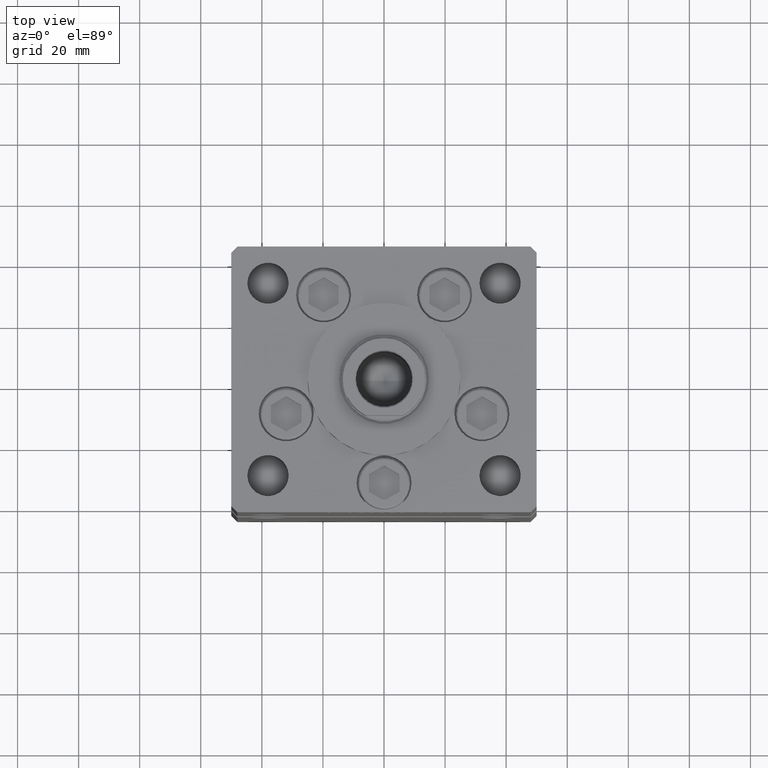
[diagram: clean part render]
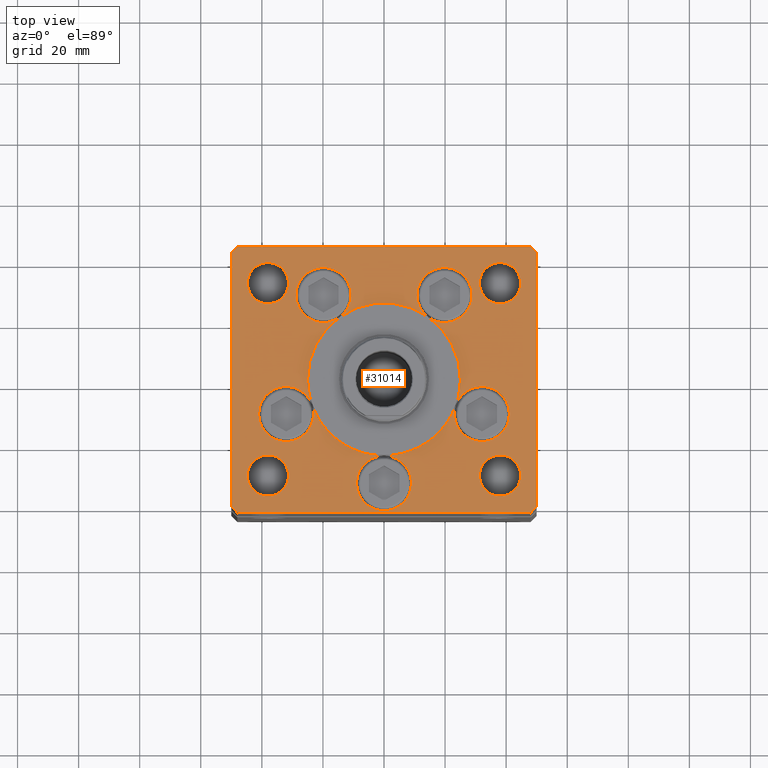
[diagram: same view with one face highlighted and labeled with its STEP entity id]
A machine part, top view. The second image highlights one B-rep face of the part: STEP entity #31014.
In plain terms, the highlighted planar face has unit normal (0, 0, 1).
Its self-contained STEP definition (entity closure, byte-faithful):
#512 = DIRECTION ( 'NONE',  ( 0.000000000000000000, 0.000000000000000000, 1.000000000000000000 ) ) ;
#589 = CARTESIAN_POINT ( 'NONE',  ( 32.05550741379015989, -11.33333333333332860, 0.000000000000000000 ) ) ;
#779 = ORIENTED_EDGE ( 'NONE', *, *, #16235, .F. ) ;
#809 = DIRECTION ( 'NONE',  ( 0.7071067811865487940, -0.7071067811865463515, 0.000000000000000000 ) ) ;
#1120 = CARTESIAN_POINT ( 'NONE',  ( 19.82068048781374969, 27.62499999999998934, 0.000000000000000000 ) ) ;
#1292 = DIRECTION ( 'NONE',  ( 1.000000000000000000, 0.000000000000000000, 0.000000000000000000 ) ) ;
#1424 = EDGE_CURVE ( 'NONE', #24962, #34467, #2794, .T. ) ;
#1741 = AXIS2_PLACEMENT_3D ( 'NONE', #16923, #33864, #42215 ) ;
#2241 = VERTEX_POINT ( 'NONE', #17220 ) ;
#2281 = DIRECTION ( 'NONE',  ( 1.000000000000000000, 0.000000000000000000, 0.000000000000000000 ) ) ;
#2401 = VECTOR ( 'NONE', #42811, 1000.000000000000000 ) ;
#2623 = CIRCLE ( 'NONE', #1741, 6.749999999999999112 ) ;
#2794 = LINE ( 'NONE', #43438, #34009 ) ;
#2974 = ORIENTED_EDGE ( 'NONE', *, *, #29255, .F. ) ;
#3196 = EDGE_CURVE ( 'NONE', #34467, #23045, #20460, .T. ) ;
#3216 = CARTESIAN_POINT ( 'NONE',  ( 48.00000000000000711, -43.49999999999992184, 0.000000000000000000 ) ) ;
#3296 = ORIENTED_EDGE ( 'NONE', *, *, #42324, .F. ) ;
#3543 = CIRCLE ( 'NONE', #10422, 25.00000000000000000 ) ;
#3569 = PLANE ( 'NONE',  #36619 ) ;
#3830 = DIRECTION ( 'NONE',  ( 1.000000000000000000, 0.000000000000000000, 0.000000000000000000 ) ) ;
#3973 = CARTESIAN_POINT ( 'NONE',  ( 44.75000000000000711, -31.50000000000000711, 0.000000000000000000 ) ) ;
#4021 = CARTESIAN_POINT ( 'NONE',  ( -48.00000000000000711, -43.50000000000002842, 0.000000000000000000 ) ) ;
#4322 = CARTESIAN_POINT ( 'NONE',  ( -50.00000000000000000, -41.50000000000004263, 0.000000000000000000 ) ) ;
#4509 = ORIENTED_EDGE ( 'NONE', *, *, #17508, .T. ) ;
#4883 = EDGE_LOOP ( 'NONE', ( #48719, #26849 ) ) ;
#4933 = AXIS2_PLACEMENT_3D ( 'NONE', #41614, #28964, #37054 ) ;
#5100 = ORIENTED_EDGE ( 'NONE', *, *, #3196, .T. ) ;
#5152 = CARTESIAN_POINT ( 'NONE',  ( 50.00000000000000000, -41.49999999999992895, 0.000000000000000000 ) ) ;
#5416 = ORIENTED_EDGE ( 'NONE', *, *, #10104, .F. ) ;
#5425 = ORIENTED_EDGE ( 'NONE', *, *, #35216, .F. ) ;
#5870 = CARTESIAN_POINT ( 'NONE',  ( 50.00000000000000000, 41.50000000000000711, 0.000000000000000000 ) ) ;
#6056 = CARTESIAN_POINT ( 'NONE',  ( -25.00000000000000000, -6.938893903907228378E-15, 0.000000000000000000 ) ) ;
#6224 = EDGE_CURVE ( 'NONE', #27123, #28020, #44391, .T. ) ;
#6301 = CARTESIAN_POINT ( 'NONE',  ( -48.00000000000000000, 43.49999999999997158, 0.000000000000000000 ) ) ;
#6851 = CIRCLE ( 'NONE', #47238, 9.000000000000000000 ) ;
#6889 = CARTESIAN_POINT ( 'NONE',  ( 19.82068048781374969, 27.62499999999998934, 0.000000000000000000 ) ) ;
#7100 = DIRECTION ( 'NONE',  ( 0.000000000000000000, 0.000000000000000000, 1.000000000000000000 ) ) ;
#7231 = CARTESIAN_POINT ( 'NONE',  ( 32.05550741379015989, -11.33333333333332860, 0.000000000000000000 ) ) ;
#7482 = ORIENTED_EDGE ( 'NONE', *, *, #21042, .T. ) ;
#7543 = CIRCLE ( 'NONE', #35044, 25.00000000000000000 ) ;
#7591 = CARTESIAN_POINT ( 'NONE',  ( 0.000000000000000000, -6.938893903907228378E-15, 0.000000000000000000 ) ) ;
#7605 = DIRECTION ( 'NONE',  ( -0.000000000000000000, 0.000000000000000000, 1.000000000000000000 ) ) ;
#7742 = VERTEX_POINT ( 'NONE', #43314 ) ;
#7894 = CARTESIAN_POINT ( 'NONE',  ( -32.05550741379015989, -11.33333333333332860, 0.000000000000000000 ) ) ;
#8005 = EDGE_LOOP ( 'NONE', ( #3296, #14112 ) ) ;
#8190 = VERTEX_POINT ( 'NONE', #36101 ) ;
#8258 = DIRECTION ( 'NONE',  ( 1.000000000000000000, 0.000000000000000000, 0.000000000000000000 ) ) ;
#8287 = VECTOR ( 'NONE', #36046, 1000.000000000000114 ) ;
#8371 = CARTESIAN_POINT ( 'NONE',  ( -48.00000000000000000, 43.49999999999997158, 0.000000000000000000 ) ) ;
#8582 = CARTESIAN_POINT ( 'NONE',  ( 47.99999999999999289, 43.50000000000000000, 0.000000000000000000 ) ) ;
#8601 = CARTESIAN_POINT ( 'NONE',  ( 0.000000000000000000, -34.00000000000000000, 0.000000000000000000 ) ) ;
#8664 = DIRECTION ( 'NONE',  ( 0.000000000000000000, 0.000000000000000000, 1.000000000000000000 ) ) ;
#8673 = DIRECTION ( 'NONE',  ( 1.000000000000000000, 0.000000000000000000, 0.000000000000000000 ) ) ;
#8769 = CARTESIAN_POINT ( 'NONE',  ( 48.00000000000000711, -43.49999999999992184, 0.000000000000000000 ) ) ;
#8832 = AXIS2_PLACEMENT_3D ( 'NONE', #18269, #42496, #29841 ) ;
#9555 = CARTESIAN_POINT ( 'NONE',  ( -38.00000000000000711, -31.50000000000000711, 0.000000000000000000 ) ) ;
#9678 = CARTESIAN_POINT ( 'NONE',  ( 14.57402977045128623, 20.31249999999998579, 0.000000000000000000 ) ) ;
#9684 = DIRECTION ( 'NONE',  ( 1.000000000000000000, 0.000000000000000000, 0.000000000000000000 ) ) ;
#9737 = EDGE_CURVE ( 'NONE', #52814, #2241, #36695, .T. ) ;
#9980 = LINE ( 'NONE', #5152, #2401 ) ;
#10104 = EDGE_CURVE ( 'NONE', #2241, #7742, #7543, .T. ) ;
#10299 = VERTEX_POINT ( 'NONE', #31278 ) ;
#10328 = FACE_BOUND ( 'NONE', #38133, .T. ) ;
#10380 = DIRECTION ( 'NONE',  ( -1.000000000000000000, 0.000000000000000000, 0.000000000000000000 ) ) ;
#10422 = AXIS2_PLACEMENT_3D ( 'NONE', #46358, #34769, #21594 ) ;
#10616 = CARTESIAN_POINT ( 'NONE',  ( -19.82068048781374969, 27.62499999999998934, 0.000000000000000000 ) ) ;
#10924 = CARTESIAN_POINT ( 'NONE',  ( 10.82068048781375147, 27.62499999999998934, 0.000000000000000000 ) ) ;
#11069 = AXIS2_PLACEMENT_3D ( 'NONE', #7591, #23468, #35576 ) ;
#11463 = CARTESIAN_POINT ( 'NONE',  ( -19.82068048781374969, 27.62499999999998934, 0.000000000000000000 ) ) ;
#11540 = CARTESIAN_POINT ( 'NONE',  ( 19.82068048781374969, 27.62499999999998934, 0.000000000000000000 ) ) ;
#11636 = CARTESIAN_POINT ( 'NONE',  ( 0.000000000000000000, -6.938893903907228378E-15, 0.000000000000000000 ) ) ;
#11890 = CIRCLE ( 'NONE', #25631, 6.749999999999999112 ) ;
#11983 = DIRECTION ( 'NONE',  ( 1.000000000000000000, 0.000000000000000000, 0.000000000000000000 ) ) ;
#12001 = DIRECTION ( 'NONE',  ( 1.000000000000000000, 0.000000000000000000, 0.000000000000000000 ) ) ;
#12440 = AXIS2_PLACEMENT_3D ( 'NONE', #11636, #41504, #32886 ) ;
#12705 = CIRCLE ( 'NONE', #20396, 9.000000000000001776 ) ;
#12929 = EDGE_CURVE ( 'NONE', #25811, #37406, #40278, .T. ) ;
#13278 = CIRCLE ( 'NONE', #52819, 8.999999999999998224 ) ;
#13505 = AXIS2_PLACEMENT_3D ( 'NONE', #6889, #31898, #11983 ) ;
#13567 = VERTEX_POINT ( 'NONE', #30137 ) ;
#13729 = CARTESIAN_POINT ( 'NONE',  ( -32.05550741379015989, -11.33333333333332860, 0.000000000000000000 ) ) ;
#13787 = EDGE_CURVE ( 'NONE', #13567, #7742, #45442, .T. ) ;
#14044 = DIRECTION ( 'NONE',  ( 1.000000000000000000, 0.000000000000000000, 0.000000000000000000 ) ) ;
#14112 = ORIENTED_EDGE ( 'NONE', *, *, #29452, .F. ) ;
#14305 = ORIENTED_EDGE ( 'NONE', *, *, #29113, .F. ) ;
#14488 = ORIENTED_EDGE ( 'NONE', *, *, #18122, .T. ) ;
#14791 = EDGE_CURVE ( 'NONE', #44889, #38932, #28269, .T. ) ;
#14978 = CARTESIAN_POINT ( 'NONE',  ( 50.00000000000000000, 41.50000000000000711, 0.000000000000000000 ) ) ;
#15201 = DIRECTION ( 'NONE',  ( -0.000000000000000000, -0.000000000000000000, -1.000000000000000000 ) ) ;
#15271 = CIRCLE ( 'NONE', #22990, 9.000000000000000000 ) ;
#15326 = DIRECTION ( 'NONE',  ( 0.000000000000000000, 0.000000000000000000, 1.000000000000000000 ) ) ;
#15338 = DIRECTION ( 'NONE',  ( 1.000000000000000000, 0.000000000000000000, 0.000000000000000000 ) ) ;
#15762 = AXIS2_PLACEMENT_3D ( 'NONE', #32440, #48871, #12001 ) ;
#15981 = DIRECTION ( 'NONE',  ( 1.000000000000000000, 0.000000000000000000, 0.000000000000000000 ) ) ;
#16235 = EDGE_CURVE ( 'NONE', #8190, #25811, #29162, .T. ) ;
#16345 = EDGE_CURVE ( 'NONE', #23304, #23607, #6851, .T. ) ;
#16468 = FACE_OUTER_BOUND ( 'NONE', #48143, .T. ) ;
#16923 = CARTESIAN_POINT ( 'NONE',  ( 38.00000000000000711, -31.50000000000000711, 0.000000000000000000 ) ) ;
#16967 = DIRECTION ( 'NONE',  ( -0.7071067811865536790, -0.7071067811865414665, 0.000000000000000000 ) ) ;
#17176 = ORIENTED_EDGE ( 'NONE', *, *, #37209, .T. ) ;
#17220 = CARTESIAN_POINT ( 'NONE',  ( -23.57022603955158502, -8.333333333333332149, 0.000000000000000000 ) ) ;
#17270 = ORIENTED_EDGE ( 'NONE', *, *, #9737, .F. ) ;
#17465 = CARTESIAN_POINT ( 'NONE',  ( -50.00000000000000711, 41.49999999999999289, 0.000000000000000000 ) ) ;
#17483 = CIRCLE ( 'NONE', #15762, 25.00000000000000000 ) ;
#17508 = EDGE_CURVE ( 'NONE', #23045, #24221, #19493, .T. ) ;
#18022 = EDGE_CURVE ( 'NONE', #27700, #34807, #43885, .T. ) ;
#18073 = DIRECTION ( 'NONE',  ( 0.000000000000000000, 0.000000000000000000, 1.000000000000000000 ) ) ;
#18122 = EDGE_CURVE ( 'NONE', #39327, #22811, #2623, .T. ) ;
#18269 = CARTESIAN_POINT ( 'NONE',  ( 38.00000000000000000, 31.50000000000000000, 0.000000000000000000 ) ) ;
#18565 = CARTESIAN_POINT ( 'NONE',  ( -38.00000000000000000, 31.50000000000000000, 0.000000000000000000 ) ) ;
#18672 = ORIENTED_EDGE ( 'NONE', *, *, #18022, .F. ) ;
#18901 = VECTOR ( 'NONE', #39708, 1000.000000000000000 ) ;
#19493 = LINE ( 'NONE', #27312, #18901 ) ;
#19549 = DIRECTION ( 'NONE',  ( 1.000000000000000000, 0.000000000000000000, 0.000000000000000000 ) ) ;
#19622 = DIRECTION ( 'NONE',  ( -0.000000000000000000, -0.000000000000000000, -1.000000000000000000 ) ) ;
#19775 = AXIS2_PLACEMENT_3D ( 'NONE', #11540, #52465, #43316 ) ;
#20161 = ORIENTED_EDGE ( 'NONE', *, *, #44304, .F. ) ;
#20321 = VECTOR ( 'NONE', #16967, 1000.000000000000000 ) ;
#20367 = EDGE_CURVE ( 'NONE', #38932, #44889, #32019, .T. ) ;
#20396 = AXIS2_PLACEMENT_3D ( 'NONE', #13729, #21524, #9684 ) ;
#20460 = LINE ( 'NONE', #8371, #20321 ) ;
#20724 = AXIS2_PLACEMENT_3D ( 'NONE', #30820, #15201, #10380 ) ;
#21042 = EDGE_CURVE ( 'NONE', #22811, #39327, #33709, .T. ) ;
#21079 = DIRECTION ( 'NONE',  ( 0.000000000000000000, 0.000000000000000000, 1.000000000000000000 ) ) ;
#21327 = DIRECTION ( 'NONE',  ( 0.000000000000000000, 0.000000000000000000, 1.000000000000000000 ) ) ;
#21524 = DIRECTION ( 'NONE',  ( 0.000000000000000000, 0.000000000000000000, 1.000000000000000000 ) ) ;
#21594 = DIRECTION ( 'NONE',  ( 1.000000000000000000, 0.000000000000000000, 0.000000000000000000 ) ) ;
#21823 = DIRECTION ( 'NONE',  ( -0.000000000000000000, -0.000000000000000000, -1.000000000000000000 ) ) ;
#22023 = EDGE_CURVE ( 'NONE', #37406, #23344, #24449, .T. ) ;
#22095 = DIRECTION ( 'NONE',  ( -1.000000000000000000, 0.000000000000000000, 0.000000000000000000 ) ) ;
#22139 = CIRCLE ( 'NONE', #40203, 9.000000000000000000 ) ;
#22189 = CARTESIAN_POINT ( 'NONE',  ( 44.75000000000000000, 31.50000000000000000, 0.000000000000000000 ) ) ;
#22220 = AXIS2_PLACEMENT_3D ( 'NONE', #52472, #15326, #35245 ) ;
#22263 = AXIS2_PLACEMENT_3D ( 'NONE', #24137, #49163, #8258 ) ;
#22577 = ORIENTED_EDGE ( 'NONE', *, *, #32409, .T. ) ;
#22797 = AXIS2_PLACEMENT_3D ( 'NONE', #26321, #34929, #38714 ) ;
#22811 = VERTEX_POINT ( 'NONE', #26413 ) ;
#22835 = ORIENTED_EDGE ( 'NONE', *, *, #45180, .T. ) ;
#22842 = EDGE_CURVE ( 'NONE', #34807, #49582, #13278, .T. ) ;
#22990 = AXIS2_PLACEMENT_3D ( 'NONE', #11463, #28128, #27864 ) ;
#23045 = VERTEX_POINT ( 'NONE', #17465 ) ;
#23165 = EDGE_LOOP ( 'NONE', ( #14488, #7482 ) ) ;
#23304 = VERTEX_POINT ( 'NONE', #27933 ) ;
#23344 = VERTEX_POINT ( 'NONE', #23914 ) ;
#23369 = EDGE_CURVE ( 'NONE', #37406, #8190, #34676, .T. ) ;
#23468 = DIRECTION ( 'NONE',  ( 0.000000000000000000, 0.000000000000000000, 1.000000000000000000 ) ) ;
#23602 = DIRECTION ( 'NONE',  ( 0.000000000000000000, 0.000000000000000000, 1.000000000000000000 ) ) ;
#23607 = VERTEX_POINT ( 'NONE', #48085 ) ;
#23651 = EDGE_CURVE ( 'NONE', #23344, #34807, #17483, .T. ) ;
#23838 = CARTESIAN_POINT ( 'NONE',  ( -48.00000000000000711, -43.50000000000002842, 0.000000000000000000 ) ) ;
#23911 = AXIS2_PLACEMENT_3D ( 'NONE', #9555, #7100, #40721 ) ;
#23914 = CARTESIAN_POINT ( 'NONE',  ( 25.00000000000000000, -3.877276906038844941E-15, 0.000000000000000000 ) ) ;
#24020 = AXIS2_PLACEMENT_3D ( 'NONE', #7894, #24298, #33179 ) ;
#24137 = CARTESIAN_POINT ( 'NONE',  ( 38.00000000000000000, 31.50000000000000000, 0.000000000000000000 ) ) ;
#24221 = VERTEX_POINT ( 'NONE', #48942 ) ;
#24298 = DIRECTION ( 'NONE',  ( 0.000000000000000000, 0.000000000000000000, 1.000000000000000000 ) ) ;
#24449 = CIRCLE ( 'NONE', #12440, 25.00000000000000000 ) ;
#24793 = CIRCLE ( 'NONE', #23911, 6.749999999999999112 ) ;
#24866 = CARTESIAN_POINT ( 'NONE',  ( 0.000000000000000000, -6.938893903907228378E-15, 0.000000000000000000 ) ) ;
#24899 = CARTESIAN_POINT ( 'NONE',  ( -41.05550741379015989, -11.33333333333332682, 0.000000000000000000 ) ) ;
#24962 = VERTEX_POINT ( 'NONE', #8582 ) ;
#25631 = AXIS2_PLACEMENT_3D ( 'NONE', #34738, #21823, #22095 ) ;
#25811 = VERTEX_POINT ( 'NONE', #50688 ) ;
#25932 = ORIENTED_EDGE ( 'NONE', *, *, #36037, .F. ) ;
#26321 = CARTESIAN_POINT ( 'NONE',  ( -38.00000000000000711, -31.50000000000000711, 0.000000000000000000 ) ) ;
#26413 = CARTESIAN_POINT ( 'NONE',  ( 31.25000000000000711, -31.50000000000000711, 0.000000000000000000 ) ) ;
#26519 = CIRCLE ( 'NONE', #11069, 25.00000000000000000 ) ;
#26736 = FACE_BOUND ( 'NONE', #28821, .T. ) ;
#26849 = ORIENTED_EDGE ( 'NONE', *, *, #20367, .F. ) ;
#27089 = CIRCLE ( 'NONE', #32238, 25.00000000000000000 ) ;
#27098 = CARTESIAN_POINT ( 'NONE',  ( -19.82068048781374969, 27.62499999999998934, 0.000000000000000000 ) ) ;
#27123 = VERTEX_POINT ( 'NONE', #37803 ) ;
#27177 = CARTESIAN_POINT ( 'NONE',  ( 0.000000000000000000, -6.938893903907228378E-15, 0.000000000000000000 ) ) ;
#27272 = CARTESIAN_POINT ( 'NONE',  ( -44.75000000000000000, 31.50000000000000000, 0.000000000000000000 ) ) ;
#27312 = CARTESIAN_POINT ( 'NONE',  ( -50.00000000000000711, 41.49999999999999289, 0.000000000000000000 ) ) ;
#27383 = ORIENTED_EDGE ( 'NONE', *, *, #35333, .T. ) ;
#27435 = AXIS2_PLACEMENT_3D ( 'NONE', #33063, #32530, #52993 ) ;
#27540 = ORIENTED_EDGE ( 'NONE', *, *, #23369, .F. ) ;
#27700 = VERTEX_POINT ( 'NONE', #10924 ) ;
#27864 = DIRECTION ( 'NONE',  ( 1.000000000000000000, 0.000000000000000000, 0.000000000000000000 ) ) ;
#27933 = CARTESIAN_POINT ( 'NONE',  ( -14.57402977045128978, 20.31249999999999289, 0.000000000000000000 ) ) ;
#28020 = VERTEX_POINT ( 'NONE', #27272 ) ;
#28128 = DIRECTION ( 'NONE',  ( 0.000000000000000000, 0.000000000000000000, 1.000000000000000000 ) ) ;
#28269 = CIRCLE ( 'NONE', #22263, 6.749999999999999112 ) ;
#28288 = ORIENTED_EDGE ( 'NONE', *, *, #22023, .F. ) ;
#28472 = DIRECTION ( 'NONE',  ( 0.000000000000000000, 0.000000000000000000, 1.000000000000000000 ) ) ;
#28821 = EDGE_LOOP ( 'NONE', ( #42620, #31416 ) ) ;
#28826 = AXIS2_PLACEMENT_3D ( 'NONE', #45537, #8664, #50096 ) ;
#28964 = DIRECTION ( 'NONE',  ( 0.000000000000000000, 0.000000000000000000, 1.000000000000000000 ) ) ;
#29113 = EDGE_CURVE ( 'NONE', #2241, #44815, #30514, .T. ) ;
#29162 = CIRCLE ( 'NONE', #27435, 9.000000000000001776 ) ;
#29255 = EDGE_CURVE ( 'NONE', #7742, #37406, #27089, .T. ) ;
#29452 = EDGE_CURVE ( 'NONE', #36009, #44901, #36553, .T. ) ;
#29506 = ORIENTED_EDGE ( 'NONE', *, *, #32268, .T. ) ;
#29841 = DIRECTION ( 'NONE',  ( 1.000000000000000000, 0.000000000000000000, 0.000000000000000000 ) ) ;
#30137 = CARTESIAN_POINT ( 'NONE',  ( 9.000000000000000000, -34.00000000000000000, 0.000000000000000000 ) ) ;
#30514 = CIRCLE ( 'NONE', #28826, 9.000000000000001776 ) ;
#30746 = CARTESIAN_POINT ( 'NONE',  ( 50.00000000000000000, -41.49999999999992895, 0.000000000000000000 ) ) ;
#30820 = CARTESIAN_POINT ( 'NONE',  ( 38.00000000000000711, -31.50000000000000711, 0.000000000000000000 ) ) ;
#31014 = ADVANCED_FACE ( 'NONE', ( #10328, #26736, #43162, #44478, #16468, #45008 ), #3569, .T. ) ;
#31175 = VERTEX_POINT ( 'NONE', #42034 ) ;
#31278 = CARTESIAN_POINT ( 'NONE',  ( -9.000000000000000000, -34.00000000000000000, 0.000000000000000000 ) ) ;
#31416 = ORIENTED_EDGE ( 'NONE', *, *, #37880, .T. ) ;
#31740 = VECTOR ( 'NONE', #809, 1000.000000000000000 ) ;
#31898 = DIRECTION ( 'NONE',  ( 0.000000000000000000, 0.000000000000000000, 1.000000000000000000 ) ) ;
#32019 = CIRCLE ( 'NONE', #8832, 6.749999999999999112 ) ;
#32087 = AXIS2_PLACEMENT_3D ( 'NONE', #7231, #28472, #48410 ) ;
#32238 = AXIS2_PLACEMENT_3D ( 'NONE', #27177, #43605, #15338 ) ;
#32268 = EDGE_CURVE ( 'NONE', #41187, #44269, #35508, .T. ) ;
#32409 = EDGE_CURVE ( 'NONE', #46469, #24962, #38158, .T. ) ;
#32440 = CARTESIAN_POINT ( 'NONE',  ( 0.000000000000000000, -6.938893903907228378E-15, 0.000000000000000000 ) ) ;
#32530 = DIRECTION ( 'NONE',  ( 0.000000000000000000, 0.000000000000000000, 1.000000000000000000 ) ) ;
#32886 = DIRECTION ( 'NONE',  ( 1.000000000000000000, 0.000000000000000000, 0.000000000000000000 ) ) ;
#33063 = CARTESIAN_POINT ( 'NONE',  ( 32.05550741379015989, -11.33333333333332860, 0.000000000000000000 ) ) ;
#33179 = DIRECTION ( 'NONE',  ( 1.000000000000000000, 0.000000000000000000, 0.000000000000000000 ) ) ;
#33187 = EDGE_CURVE ( 'NONE', #10299, #13567, #37524, .T. ) ;
#33709 = CIRCLE ( 'NONE', #20724, 6.749999999999999112 ) ;
#33833 = ORIENTED_EDGE ( 'NONE', *, *, #1424, .T. ) ;
#33864 = DIRECTION ( 'NONE',  ( -0.000000000000000000, -0.000000000000000000, -1.000000000000000000 ) ) ;
#33900 = CARTESIAN_POINT ( 'NONE',  ( -23.05550741379015633, -11.33333333333332860, 0.000000000000000000 ) ) ;
#34009 = VECTOR ( 'NONE', #35359, 1000.000000000000000 ) ;
#34227 = EDGE_CURVE ( 'NONE', #49582, #27700, #41855, .T. ) ;
#34467 = VERTEX_POINT ( 'NONE', #6301 ) ;
#34554 = CARTESIAN_POINT ( 'NONE',  ( 31.25000000000000000, 31.50000000000000000, 0.000000000000000000 ) ) ;
#34676 = CIRCLE ( 'NONE', #32087, 9.000000000000001776 ) ;
#34738 = CARTESIAN_POINT ( 'NONE',  ( -38.00000000000000000, 31.50000000000000000, 0.000000000000000000 ) ) ;
#34769 = DIRECTION ( 'NONE',  ( 0.000000000000000000, 0.000000000000000000, 1.000000000000000000 ) ) ;
#34807 = VERTEX_POINT ( 'NONE', #9678 ) ;
#34929 = DIRECTION ( 'NONE',  ( 0.000000000000000000, 0.000000000000000000, 1.000000000000000000 ) ) ;
#35044 = AXIS2_PLACEMENT_3D ( 'NONE', #24866, #21079, #15981 ) ;
#35216 = EDGE_CURVE ( 'NONE', #23607, #31175, #15271, .T. ) ;
#35245 = DIRECTION ( 'NONE',  ( 1.000000000000000000, 0.000000000000000000, 0.000000000000000000 ) ) ;
#35333 = EDGE_CURVE ( 'NONE', #37343, #41187, #52641, .T. ) ;
#35359 = DIRECTION ( 'NONE',  ( -1.000000000000000000, -2.891205793294678326E-16, 0.000000000000000000 ) ) ;
#35508 = LINE ( 'NONE', #3216, #8287 ) ;
#35516 = DIRECTION ( 'NONE',  ( -1.000000000000000000, 0.000000000000000000, 0.000000000000000000 ) ) ;
#35576 = DIRECTION ( 'NONE',  ( 1.000000000000000000, 0.000000000000000000, 0.000000000000000000 ) ) ;
#36009 = VERTEX_POINT ( 'NONE', #38753 ) ;
#36037 = EDGE_CURVE ( 'NONE', #46540, #2241, #12705, .T. ) ;
#36046 = DIRECTION ( 'NONE',  ( 0.7071067811865474617, 0.7071067811865474617, 0.000000000000000000 ) ) ;
#36101 = CARTESIAN_POINT ( 'NONE',  ( 23.05550741379015633, -11.33333333333332682, 0.000000000000000000 ) ) ;
#36121 = CARTESIAN_POINT ( 'NONE',  ( 28.82068048781374969, 27.62499999999998934, 0.000000000000000000 ) ) ;
#36553 = CIRCLE ( 'NONE', #22797, 6.749999999999999112 ) ;
#36619 = AXIS2_PLACEMENT_3D ( 'NONE', #36660, #7605, #3830 ) ;
#36660 = CARTESIAN_POINT ( 'NONE',  ( 0.000000000000000000, 0.000000000000000000, 0.000000000000000000 ) ) ;
#36695 = CIRCLE ( 'NONE', #4933, 25.00000000000000000 ) ;
#36782 = ORIENTED_EDGE ( 'NONE', *, *, #22842, .F. ) ;
#37054 = DIRECTION ( 'NONE',  ( 1.000000000000000000, 0.000000000000000000, 0.000000000000000000 ) ) ;
#37148 = ORIENTED_EDGE ( 'NONE', *, *, #13787, .F. ) ;
#37209 = EDGE_CURVE ( 'NONE', #44269, #46469, #9980, .T. ) ;
#37343 = VERTEX_POINT ( 'NONE', #4021 ) ;
#37406 = VERTEX_POINT ( 'NONE', #53008 ) ;
#37524 = CIRCLE ( 'NONE', #50431, 9.000000000000000000 ) ;
#37729 = DIRECTION ( 'NONE',  ( 0.000000000000000000, 0.000000000000000000, 1.000000000000000000 ) ) ;
#37803 = CARTESIAN_POINT ( 'NONE',  ( -31.25000000000000000, 31.50000000000000000, 0.000000000000000000 ) ) ;
#37880 = EDGE_CURVE ( 'NONE', #28020, #27123, #11890, .T. ) ;
#37975 = ORIENTED_EDGE ( 'NONE', *, *, #12929, .F. ) ;
#38133 = EDGE_LOOP ( 'NONE', ( #20161, #18672, #47991, #36782, #46877, #28288, #37975, #779, #27540, #2974, #37148, #43869, #51323, #5416, #25932, #40056, #14305, #17270, #50773, #44065, #5425, #52813 ) ) ;
#38158 = LINE ( 'NONE', #5870, #49592 ) ;
#38608 = CARTESIAN_POINT ( 'NONE',  ( -31.25000000000000711, -31.50000000000000711, 0.000000000000000000 ) ) ;
#38714 = DIRECTION ( 'NONE',  ( 1.000000000000000000, 0.000000000000000000, 0.000000000000000000 ) ) ;
#38753 = CARTESIAN_POINT ( 'NONE',  ( -44.75000000000000711, -31.50000000000000711, 0.000000000000000000 ) ) ;
#38932 = VERTEX_POINT ( 'NONE', #34554 ) ;
#39325 = VECTOR ( 'NONE', #40262, 1000.000000000000000 ) ;
#39327 = VERTEX_POINT ( 'NONE', #3973 ) ;
#39708 = DIRECTION ( 'NONE',  ( 8.360113137237620037E-17, -1.000000000000000000, 0.000000000000000000 ) ) ;
#40056 = ORIENTED_EDGE ( 'NONE', *, *, #46078, .F. ) ;
#40203 = AXIS2_PLACEMENT_3D ( 'NONE', #10616, #48023, #2281 ) ;
#40262 = DIRECTION ( 'NONE',  ( 1.000000000000000000, 1.156482317317871331E-15, 0.000000000000000000 ) ) ;
#40278 = CIRCLE ( 'NONE', #41129, 9.000000000000001776 ) ;
#40721 = DIRECTION ( 'NONE',  ( 1.000000000000000000, 0.000000000000000000, 0.000000000000000000 ) ) ;
#41129 = AXIS2_PLACEMENT_3D ( 'NONE', #589, #37729, #8673 ) ;
#41187 = VERTEX_POINT ( 'NONE', #8769 ) ;
#41296 = EDGE_CURVE ( 'NONE', #31175, #23304, #22139, .T. ) ;
#41504 = DIRECTION ( 'NONE',  ( 0.000000000000000000, 0.000000000000000000, 1.000000000000000000 ) ) ;
#41614 = CARTESIAN_POINT ( 'NONE',  ( 0.000000000000000000, -6.938893903907228378E-15, 0.000000000000000000 ) ) ;
#41855 = CIRCLE ( 'NONE', #13505, 8.999999999999998224 ) ;
#42034 = CARTESIAN_POINT ( 'NONE',  ( -28.82068048781374969, 27.62499999999998934, 0.000000000000000000 ) ) ;
#42215 = DIRECTION ( 'NONE',  ( -1.000000000000000000, 0.000000000000000000, 0.000000000000000000 ) ) ;
#42324 = EDGE_CURVE ( 'NONE', #44901, #36009, #24793, .T. ) ;
#42458 = DIRECTION ( 'NONE',  ( -0.7071067811865512365, 0.7071067811865439090, 0.000000000000000000 ) ) ;
#42496 = DIRECTION ( 'NONE',  ( 0.000000000000000000, 0.000000000000000000, 1.000000000000000000 ) ) ;
#42620 = ORIENTED_EDGE ( 'NONE', *, *, #6224, .T. ) ;
#42811 = DIRECTION ( 'NONE',  ( 0.000000000000000000, 1.000000000000000000, 0.000000000000000000 ) ) ;
#43162 = FACE_BOUND ( 'NONE', #4883, .T. ) ;
#43314 = CARTESIAN_POINT ( 'NONE',  ( 0.000000000000000000, -25.00000000000000000, 0.000000000000000000 ) ) ;
#43316 = DIRECTION ( 'NONE',  ( 1.000000000000000000, 0.000000000000000000, 0.000000000000000000 ) ) ;
#43438 = CARTESIAN_POINT ( 'NONE',  ( 47.99999999999999289, 43.50000000000000000, 0.000000000000000000 ) ) ;
#43605 = DIRECTION ( 'NONE',  ( 0.000000000000000000, 0.000000000000000000, 1.000000000000000000 ) ) ;
#43869 = ORIENTED_EDGE ( 'NONE', *, *, #33187, .F. ) ;
#43885 = CIRCLE ( 'NONE', #19775, 8.999999999999998224 ) ;
#44065 = ORIENTED_EDGE ( 'NONE', *, *, #41296, .F. ) ;
#44269 = VERTEX_POINT ( 'NONE', #30746 ) ;
#44304 = EDGE_CURVE ( 'NONE', #34807, #23304, #26519, .T. ) ;
#44391 = CIRCLE ( 'NONE', #52114, 6.749999999999999112 ) ;
#44478 = FACE_BOUND ( 'NONE', #8005, .T. ) ;
#44815 = VERTEX_POINT ( 'NONE', #24899 ) ;
#44889 = VERTEX_POINT ( 'NONE', #22189 ) ;
#44901 = VERTEX_POINT ( 'NONE', #38608 ) ;
#45008 = FACE_BOUND ( 'NONE', #23165, .T. ) ;
#45180 = EDGE_CURVE ( 'NONE', #24221, #37343, #46289, .T. ) ;
#45442 = CIRCLE ( 'NONE', #22220, 9.000000000000000000 ) ;
#45537 = CARTESIAN_POINT ( 'NONE',  ( -32.05550741379015989, -11.33333333333332860, 0.000000000000000000 ) ) ;
#46078 = EDGE_CURVE ( 'NONE', #44815, #46540, #50697, .T. ) ;
#46092 = CARTESIAN_POINT ( 'NONE',  ( 0.000000000000000000, -34.00000000000000000, 0.000000000000000000 ) ) ;
#46289 = LINE ( 'NONE', #4322, #31740 ) ;
#46358 = CARTESIAN_POINT ( 'NONE',  ( 0.000000000000000000, -6.938893903907228378E-15, 0.000000000000000000 ) ) ;
#46469 = VERTEX_POINT ( 'NONE', #14978 ) ;
#46540 = VERTEX_POINT ( 'NONE', #33900 ) ;
#46623 = DIRECTION ( 'NONE',  ( 1.000000000000000000, 0.000000000000000000, 0.000000000000000000 ) ) ;
#46877 = ORIENTED_EDGE ( 'NONE', *, *, #23651, .F. ) ;
#47238 = AXIS2_PLACEMENT_3D ( 'NONE', #27098, #23602, #19549 ) ;
#47348 = AXIS2_PLACEMENT_3D ( 'NONE', #46092, #21327, #46623 ) ;
#47991 = ORIENTED_EDGE ( 'NONE', *, *, #34227, .F. ) ;
#48023 = DIRECTION ( 'NONE',  ( 0.000000000000000000, 0.000000000000000000, 1.000000000000000000 ) ) ;
#48085 = CARTESIAN_POINT ( 'NONE',  ( -10.82068048781375147, 27.62499999999998934, 0.000000000000000000 ) ) ;
#48143 = EDGE_LOOP ( 'NONE', ( #22835, #27383, #29506, #17176, #22577, #33833, #5100, #4509 ) ) ;
#48410 = DIRECTION ( 'NONE',  ( 1.000000000000000000, 0.000000000000000000, 0.000000000000000000 ) ) ;
#48719 = ORIENTED_EDGE ( 'NONE', *, *, #14791, .F. ) ;
#48871 = DIRECTION ( 'NONE',  ( 0.000000000000000000, 0.000000000000000000, 1.000000000000000000 ) ) ;
#48942 = CARTESIAN_POINT ( 'NONE',  ( -50.00000000000000000, -41.50000000000004263, 0.000000000000000000 ) ) ;
#49163 = DIRECTION ( 'NONE',  ( 0.000000000000000000, 0.000000000000000000, 1.000000000000000000 ) ) ;
#49582 = VERTEX_POINT ( 'NONE', #36121 ) ;
#49592 = VECTOR ( 'NONE', #42458, 999.9999999999998863 ) ;
#50096 = DIRECTION ( 'NONE',  ( 1.000000000000000000, 0.000000000000000000, 0.000000000000000000 ) ) ;
#50303 = EDGE_CURVE ( 'NONE', #23304, #52814, #3543, .T. ) ;
#50331 = EDGE_CURVE ( 'NONE', #7742, #10299, #51658, .T. ) ;
#50431 = AXIS2_PLACEMENT_3D ( 'NONE', #8601, #512, #1292 ) ;
#50688 = CARTESIAN_POINT ( 'NONE',  ( 41.05550741379015989, -11.33333333333332860, 0.000000000000000000 ) ) ;
#50697 = CIRCLE ( 'NONE', #24020, 9.000000000000001776 ) ;
#50773 = ORIENTED_EDGE ( 'NONE', *, *, #50303, .F. ) ;
#51323 = ORIENTED_EDGE ( 'NONE', *, *, #50331, .F. ) ;
#51658 = CIRCLE ( 'NONE', #47348, 9.000000000000000000 ) ;
#52114 = AXIS2_PLACEMENT_3D ( 'NONE', #18565, #19622, #35516 ) ;
#52465 = DIRECTION ( 'NONE',  ( 0.000000000000000000, 0.000000000000000000, 1.000000000000000000 ) ) ;
#52472 = CARTESIAN_POINT ( 'NONE',  ( 0.000000000000000000, -34.00000000000000000, 0.000000000000000000 ) ) ;
#52641 = LINE ( 'NONE', #23838, #39325 ) ;
#52813 = ORIENTED_EDGE ( 'NONE', *, *, #16345, .F. ) ;
#52814 = VERTEX_POINT ( 'NONE', #6056 ) ;
#52819 = AXIS2_PLACEMENT_3D ( 'NONE', #1120, #18073, #14044 ) ;
#52993 = DIRECTION ( 'NONE',  ( 1.000000000000000000, 0.000000000000000000, 0.000000000000000000 ) ) ;
#53008 = CARTESIAN_POINT ( 'NONE',  ( 23.57022603955158502, -8.333333333333332149, 0.000000000000000000 ) ) ;